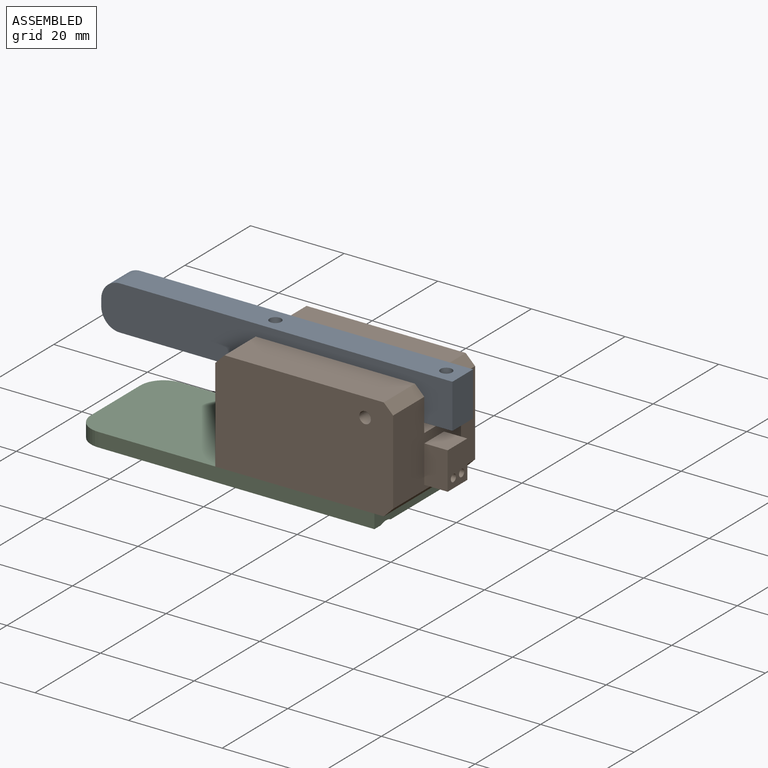
[diagram: assembled view]
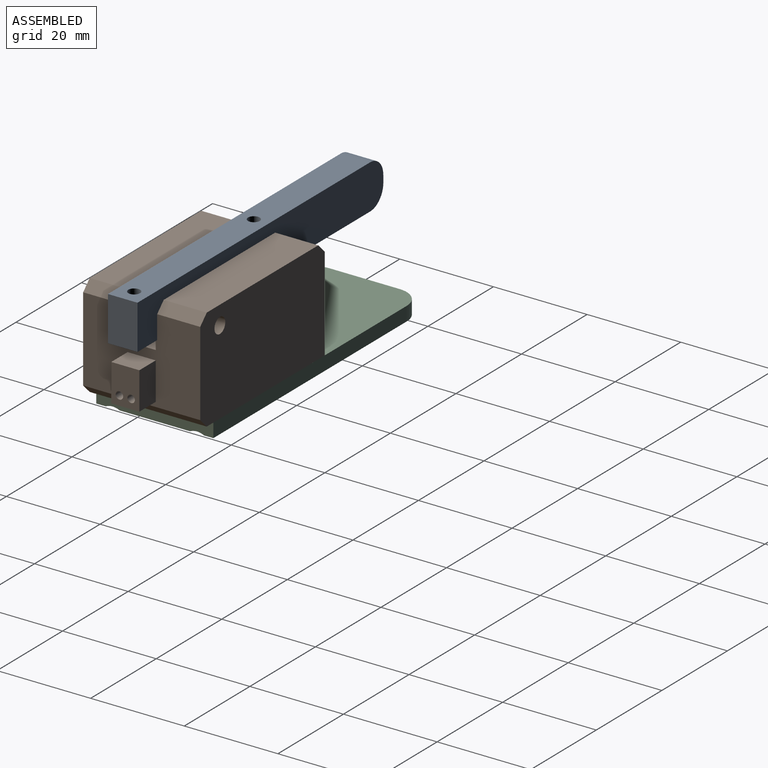
[diagram: assembled view, second angle]
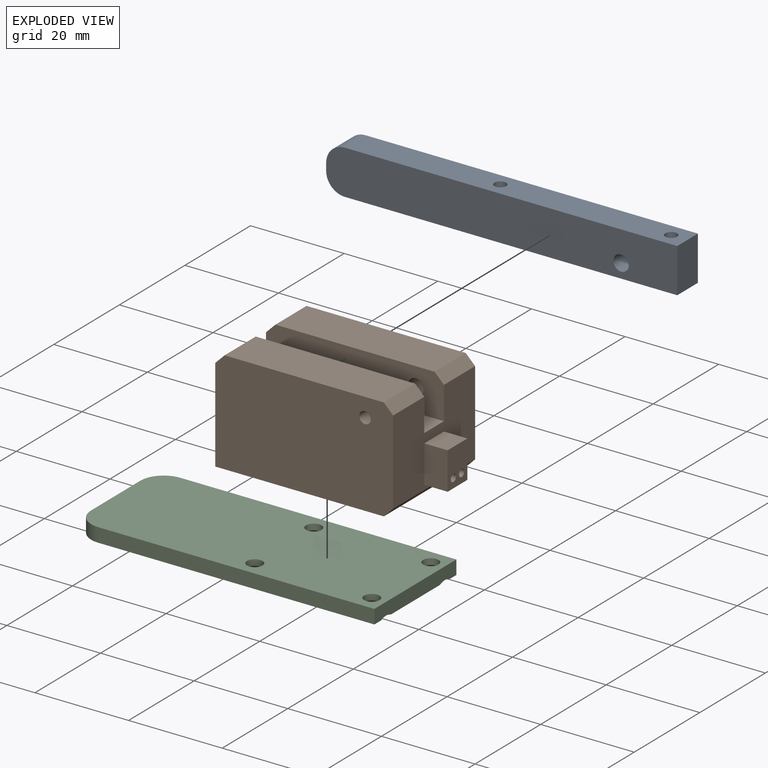
[diagram: exploded view]
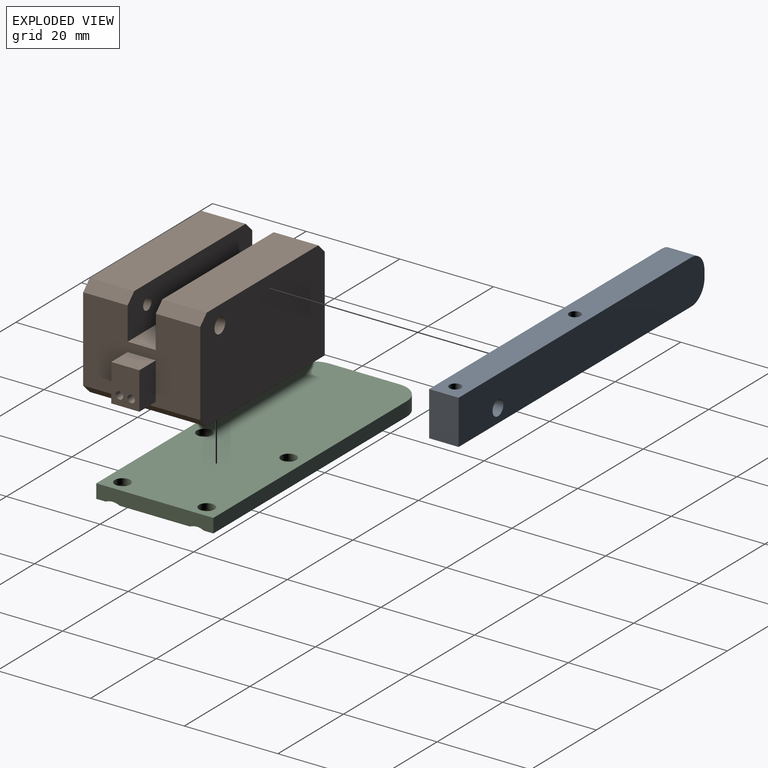
[diagram: exploded view, second angle]
ASSEMBLY  parts=3 mates=2
PART A: 11 faces, bbox 75x6.3x9.5 mm
  f0: plane 71x6.3mm, normal (0,0,1), area 437.5mm2, adj f1,f4,f5,f6,f7,f10
  f1: plane 9.5x6.3mm, normal (-1,0,0), area 59.9mm2, adj f0,f2,f4,f5
  f2: plane 71x6.3mm, normal (0,0,-1), area 437.5mm2, adj f1,f4,f5,f6,f7,f9
  f3: plane 6.3x1.5mm, normal (1,0,0), area 9.4mm2, adj f4,f5,f9,f10
  f4: plane 75x9.5mm, normal (0,-1,0), area 697.1mm2, adj f0,f1,f2,f3,f8,f9,f10
  f5: plane 75x9.5mm, normal (0,1,0), area 697.1mm2, adj f0,f1,f2,f3,f8,f9,f10
  f6: cylinder r=1.25mm len=9.5mm, axis (0,0,1), area 74.6mm2, adj f0,f2
  f7: cylinder r=1.25mm len=9.5mm, axis (0,0,1), area 74.6mm2, adj f0,f2
  f8: cylinder r=1.65mm len=6.3mm, axis (0,-1,0), area 65.3mm2, adj f4,f5
  f9: cylinder r=4mm len=6.3mm, axis (0,1,0), area 39.6mm2, adj f2,f3,f4,f5
  f10: cylinder r=4mm len=6.3mm, axis (0,-1,0), area 39.6mm2, adj f0,f3,f4,f5
PART B: 51 faces, bbox 43x25x22 mm
  f0: cylinder r=0.7mm len=9.94mm, axis (1,0,0), area 43.6mm2, adj f13,f49
  f1: cylinder r=0.7mm len=9.94mm, axis (1,0,0), area 43.6mm2, adj f13,f47
  f2: plane 6x4mm, normal (0,0,1), area 9.9mm2, adj f4,f35,f36,f38
  f3: plane 34x9.5mm, normal (0,0,1), area 323mm2, adj f10,f36,f42,f45
  f4: plane 25x20mm, normal (-1,0,0), area 428mm2, adj f2,f6,f9,f10,f32,f33,f34,f35
  f5: plane 11x10mm, normal (1,0,0), area 80mm2, adj f6,f14,f15,f16,f32,f33,f34
  f6: plane 36x25mm, normal (0,0,-1), area 543.8mm2, adj f4,f5,f9,f10,f11,f12,f13,f15
  f7: plane 25x18mm, normal (1,0,0), area 360mm2, adj f9,f10,f27,f28,f29,f30,f35,f36
  f8: plane 34x9.5mm, normal (0,0,1), area 323mm2, adj f9,f35,f43,f46
  f9: plane 38x22mm, normal (0,-1,0), area 825.1mm2, adj f4,f6,f7,f8,f41,f43,f44,f46
  f10: plane 38x22mm, normal (0,1,0), area 821.4mm2, adj f3,f4,f6,f7,f40,f42,f44,f45
  f11: plane 16x10mm, normal (0,1,0), area 160mm2, adj f6,f14,f15,f18
  f12: plane 16x10mm, normal (0,-1,0), area 160mm2, adj f6,f14,f16,f17
  f13: plane 11x10mm, normal (-1,0,0), area 106.9mm2, adj f0,f1,f6,f14,f17,f18
  f14: plane 20x15mm, normal (0,0,-1), area 296.6mm2, adj f5,f11,f12,f13,f15,f16,f17,f18
  f15: cylinder r=2mm len=10mm, axis (0,0,1), area 31.4mm2, adj f5,f6,f11,f14
  f16: cylinder r=2mm len=10mm, axis (0,0,1), area 31.4mm2, adj f5,f6,f12,f14
  f17: cylinder r=2mm len=10mm, axis (0,0,-1), area 31.4mm2, adj f6,f12,f13,f14
  f18: cylinder r=2mm len=10mm, axis (0,0,-1), area 31.4mm2, adj f6,f11,f13,f14
  f19: cone r=0mm half-angle=59deg, axis (0,0,-1), area 5.7mm2, adj f20
  f20: cylinder r=1.25mm len=13mm, axis (0,0,-1), area 102.1mm2, adj f6,f19
  f21: cone r=0mm half-angle=59deg, axis (0,0,-1), area 5.7mm2, adj f22
  f22: cylinder r=1.25mm len=13mm, axis (0,0,-1), area 102.1mm2, adj f6,f21
  f23: cone r=0mm half-angle=59deg, axis (0,0,-1), area 5.7mm2, adj f24
  f24: cylinder r=1.25mm len=13mm, axis (0,0,-1), area 102.1mm2, adj f6,f23
  f25: cone r=0mm half-angle=59deg, axis (0,0,-1), area 5.7mm2, adj f26
  f26: cylinder r=1.25mm len=13mm, axis (0,0,-1), area 102.1mm2, adj f6,f25
  f27: plane 8x5mm, normal (0,-1,0), area 40mm2, adj f7,f28,f30,f31
  f28: plane 6x5mm, normal (0,0,-1), area 30mm2, adj f7,f27,f29,f31
  f29: plane 8x5mm, normal (0,1,0), area 40mm2, adj f7,f28,f30,f31
  f30: plane 6x5mm, normal (0,0,1), area 30mm2, adj f7,f27,f29,f31
  f31: plane 8x6mm, normal (1,0,0), area 44mm2, adj f27,f28,f29,f30,f48,f50
  f32: plane 8x6mm, normal (0,1,0), area 48mm2, adj f4,f5,f6,f34
  f33: plane 8x6mm, normal (0,-1,0), area 48mm2, adj f4,f5,f6,f34
  f34: plane 8x5mm, normal (0,0,-1), area 40mm2, adj f4,f5,f32,f33
  f35: plane 38x9mm, normal (0,1,0), area 333.1mm2, adj f2,f4,f7,f8,f37,f41,f43,f46
  f36: plane 38x9mm, normal (0,-1,0), area 329.4mm2, adj f2,f3,f4,f7,f37,f40,f42,f45
  f37: plane 34x6mm, normal (0,0,1), area 189.9mm2, adj f7,f35,f36,f38
  f38: cylinder r=3mm len=6mm, axis (0,0,1), area 37.7mm2, adj f2,f37,f39
  f39: plane 6x6mm, normal (0,0,1), area 28.3mm2, adj f38
  f40: cylinder r=1.65mm len=9.5mm, axis (0,1,0), area 98.5mm2, adj f10,f36
  f41: cylinder r=1.25mm len=9.5mm, axis (0,-1,0), area 74.6mm2, adj f9,f35
  f42: plane 9.5x2mm, normal (-0.71,0,0.71), area 26.9mm2, adj f3,f4,f10,f36
  f43: plane 9.5x2mm, normal (-0.71,0,0.71), area 26.9mm2, adj f4,f8,f9,f35
  f44: plane 25x2mm, normal (0.71,0,-0.71), area 70.7mm2, adj f6,f7,f9,f10
  f45: plane 9.5x2mm, normal (0.71,0,0.71), area 26.9mm2, adj f3,f7,f10,f36
  f46: plane 9.5x2mm, normal (0.71,0,0.71), area 26.9mm2, adj f7,f8,f9,f35
  f47: cone r=0mm half-angle=59deg, axis (1,0,0), area 0.5mm2, adj f1,f48
  f48: cylinder r=0.79mm len=5mm, axis (1,0,0), area 24.9mm2, adj f31,f47
  f49: cone r=0mm half-angle=59deg, axis (1,0,0), area 0.5mm2, adj f0,f50
  f50: cylinder r=0.79mm len=5mm, axis (1,0,0), area 24.9mm2, adj f31,f49
PART C: 16 faces, bbox 64.4x3x25 mm
  f0: plane 25x3mm, normal (-1,0,0), area 73.6mm2, adj f1,f2,f3,f5,f7,f13
  f1: plane 64x25mm, normal (0,-1,0), area 1448.9mm2, adj f0,f2,f3,f4,f7,f9,f11,f13
  f2: plane 59x3mm, normal (0,0,1), area 177mm2, adj f0,f1,f5,f15
  f3: plane 59x3mm, normal (0,0,-1), area 177mm2, adj f0,f1,f5,f14
  f4: plane 15x3mm, normal (1,0,0), area 45mm2, adj f1,f5,f14,f15
  f5: plane 64x25mm, normal (0,1,0), area 1555.1mm2, adj f0,f2,f3,f4,f6,f8,f10,f12
  f6: cylinder r=1.65mm len=3.3mm, axis (0,-1,0), area 13.4mm2, adj f5,f7
  f7: cone r=1.65mm half-angle=45deg, axis (0,-1,0), area 37mm2, adj f0,f1,f6
  f8: cylinder r=1.65mm len=3.3mm, axis (0,-1,0), area 13.4mm2, adj f5,f9
  f9: cone r=1.65mm half-angle=45deg, axis (0,-1,0), area 38.1mm2, adj f1,f8
  f10: cylinder r=1.65mm len=3.3mm, axis (0,-1,0), area 13.4mm2, adj f5,f11
  f11: cone r=1.65mm half-angle=45deg, axis (0,-1,0), area 38.1mm2, adj f1,f10
  f12: cylinder r=1.65mm len=3.3mm, axis (0,-1,0), area 13.4mm2, adj f5,f13
  f13: cone r=1.65mm half-angle=45deg, axis (0,-1,0), area 37mm2, adj f0,f1,f12
  f14: cylinder r=5mm len=5mm, axis (0,1,0), area 23.6mm2, adj f1,f3,f4,f5
  f15: cylinder r=5mm len=5mm, axis (0,-1,0), area 23.6mm2, adj f1,f2,f4,f5
PLACE A rot(axis=(0,0,1),180deg) t=(44,-15.5,15)mm
PLACE B at identity
PLACE C rot(axis=(0,0.71,0.71),180deg) t=(34,-25,0)mm
MATE fastened C.f12 <-> B.f19  axis (0,0,1) through (31,-21.5,0)mm
MATE fastened A.f8 <-> B.f40  axis (0,-1,0) through (32,-15.5,18)mm
